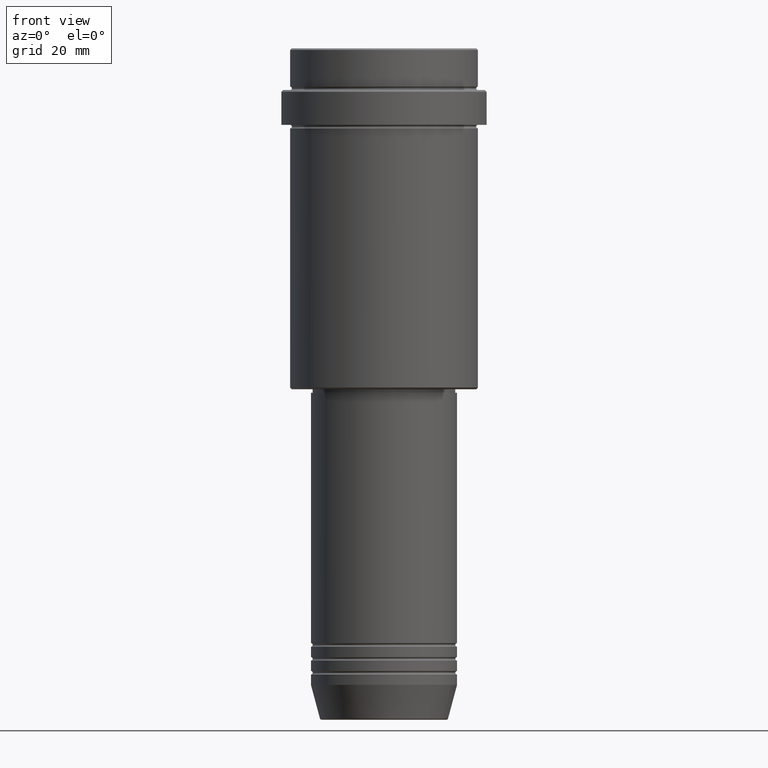
[diagram: clean part render]
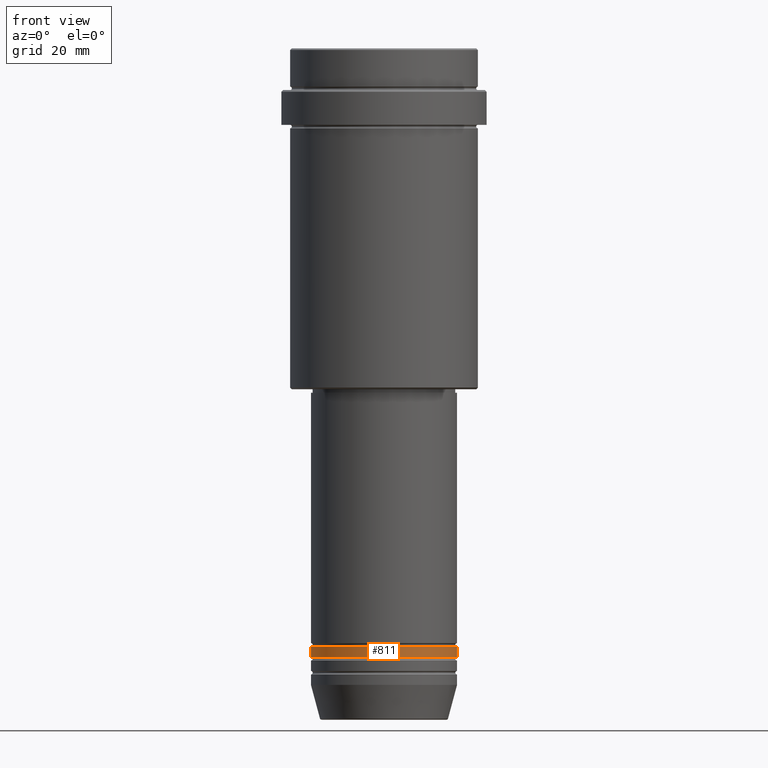
[diagram: same view with one face highlighted and labeled with its STEP entity id]
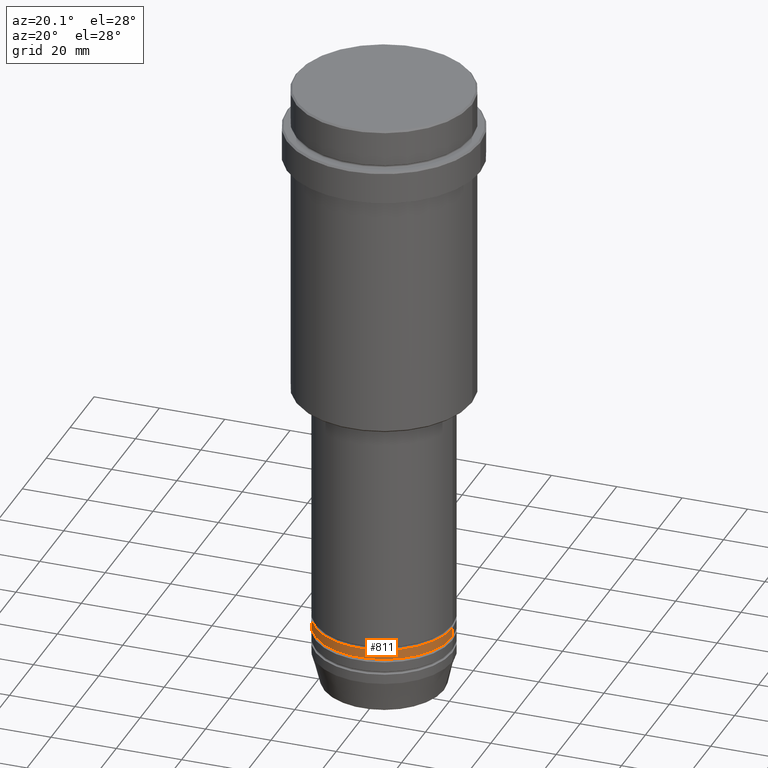
[diagram: same view with one face highlighted and labeled with its STEP entity id]
A machine part, front view. The second image highlights one B-rep face of the part: STEP entity #811.
A second angle (auxiliary view) of the same face is appended — the face is thin or edge-on in the first view.
In plain terms, the highlighted cylindrical surface (partial cylindrical patch) has radius 21 mm, axis along (-0, -0, 1).
Its self-contained STEP definition (entity closure, byte-faithful):
#3 = VERTEX_POINT ( 'NONE', #1072 ) ;
#20 = CARTESIAN_POINT ( 'NONE',  ( -21.00000000000000000, 2.571758278209441661E-15, 0.000000000000000000 ) ) ;
#22 = ORIENTED_EDGE ( 'NONE', *, *, #1228, .T. ) ;
#41 = EDGE_CURVE ( 'NONE', #251, #3, #612, .T. ) ;
#69 = DIRECTION ( 'NONE',  ( 1.000000000000000000, 0.000000000000000000, 0.000000000000000000 ) ) ;
#152 = VECTOR ( 'NONE', #207, 1000.000000000000000 ) ;
#168 = EDGE_CURVE ( 'NONE', #251, #835, #1000, .T. ) ;
#183 = CARTESIAN_POINT ( 'NONE',  ( 0.000000000000000000, 0.000000000000000000, 0.000000000000000000 ) ) ;
#207 = DIRECTION ( 'NONE',  ( -0.000000000000000000, -0.000000000000000000, 1.000000000000000000 ) ) ;
#251 = VERTEX_POINT ( 'NONE', #1226 ) ;
#287 = DIRECTION ( 'NONE',  ( -0.000000000000000000, -0.000000000000000000, 1.000000000000000000 ) ) ;
#299 = CARTESIAN_POINT ( 'NONE',  ( -21.00000000000000000, 2.571758278209441661E-15, -171.9999999999999147 ) ) ;
#357 = CIRCLE ( 'NONE', #1202, 21.00000000000000000 ) ;
#403 = FACE_OUTER_BOUND ( 'NONE', #488, .T. ) ;
#418 = CARTESIAN_POINT ( 'NONE',  ( 0.000000000000000000, 0.000000000000000000, -174.9999999999999147 ) ) ;
#448 = DIRECTION ( 'NONE',  ( -0.000000000000000000, -0.000000000000000000, 1.000000000000000000 ) ) ;
#465 = VECTOR ( 'NONE', #1305, 1000.000000000000000 ) ;
#469 = AXIS2_PLACEMENT_3D ( 'NONE', #183, #1044, #69 ) ;
#488 = EDGE_LOOP ( 'NONE', ( #601, #1012, #22, #788 ) ) ;
#554 = CARTESIAN_POINT ( 'NONE',  ( 0.000000000000000000, 0.000000000000000000, -171.9999999999999147 ) ) ;
#601 = ORIENTED_EDGE ( 'NONE', *, *, #168, .F. ) ;
#612 = CIRCLE ( 'NONE', #746, 21.00000000000000000 ) ;
#725 = CYLINDRICAL_SURFACE ( 'NONE', #469, 21.00000000000000000 ) ;
#746 = AXIS2_PLACEMENT_3D ( 'NONE', #418, #287, #1095 ) ;
#762 = CARTESIAN_POINT ( 'NONE',  ( 21.00000000000000000, 0.000000000000000000, 0.000000000000000000 ) ) ;
#788 = ORIENTED_EDGE ( 'NONE', *, *, #1395, .F. ) ;
#811 = ADVANCED_FACE ( 'NONE', ( #403 ), #725, .T. ) ;
#835 = VERTEX_POINT ( 'NONE', #299 ) ;
#875 = DIRECTION ( 'NONE',  ( 1.000000000000000000, 0.000000000000000000, 0.000000000000000000 ) ) ;
#877 = CARTESIAN_POINT ( 'NONE',  ( 21.00000000000000000, 0.000000000000000000, -171.9999999999999147 ) ) ;
#966 = VERTEX_POINT ( 'NONE', #877 ) ;
#1000 = LINE ( 'NONE', #20, #465 ) ;
#1012 = ORIENTED_EDGE ( 'NONE', *, *, #41, .T. ) ;
#1044 = DIRECTION ( 'NONE',  ( -0.000000000000000000, -0.000000000000000000, 1.000000000000000000 ) ) ;
#1072 = CARTESIAN_POINT ( 'NONE',  ( 21.00000000000000000, 0.000000000000000000, -174.9999999999999147 ) ) ;
#1095 = DIRECTION ( 'NONE',  ( 1.000000000000000000, 0.000000000000000000, 0.000000000000000000 ) ) ;
#1202 = AXIS2_PLACEMENT_3D ( 'NONE', #554, #448, #875 ) ;
#1226 = CARTESIAN_POINT ( 'NONE',  ( -21.00000000000000000, 2.571758278209441661E-15, -174.9999999999999147 ) ) ;
#1228 = EDGE_CURVE ( 'NONE', #3, #966, #1253, .T. ) ;
#1253 = LINE ( 'NONE', #762, #152 ) ;
#1305 = DIRECTION ( 'NONE',  ( -0.000000000000000000, -0.000000000000000000, 1.000000000000000000 ) ) ;
#1395 = EDGE_CURVE ( 'NONE', #835, #966, #357, .T. ) ;